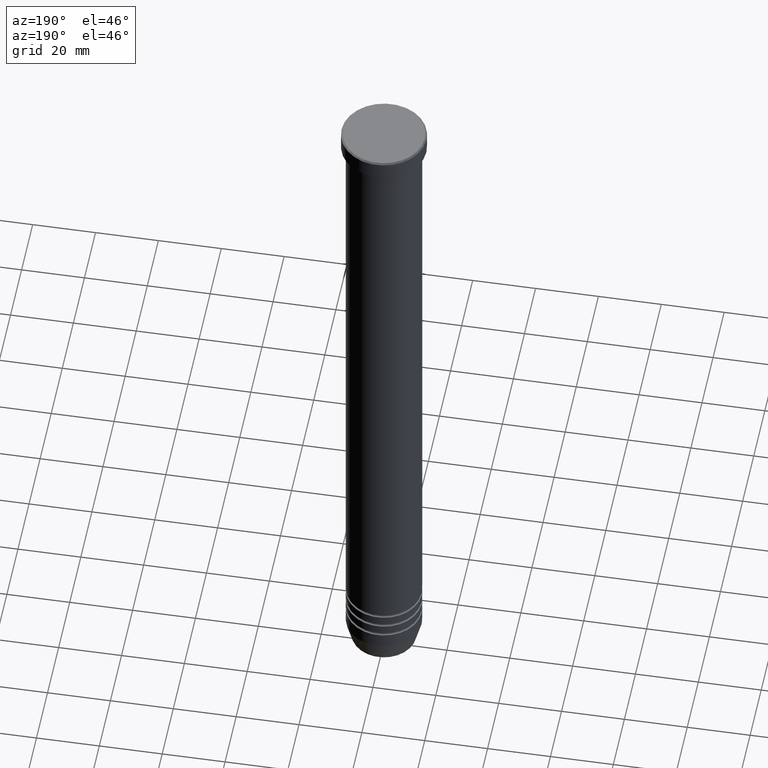
[diagram: clean part render]
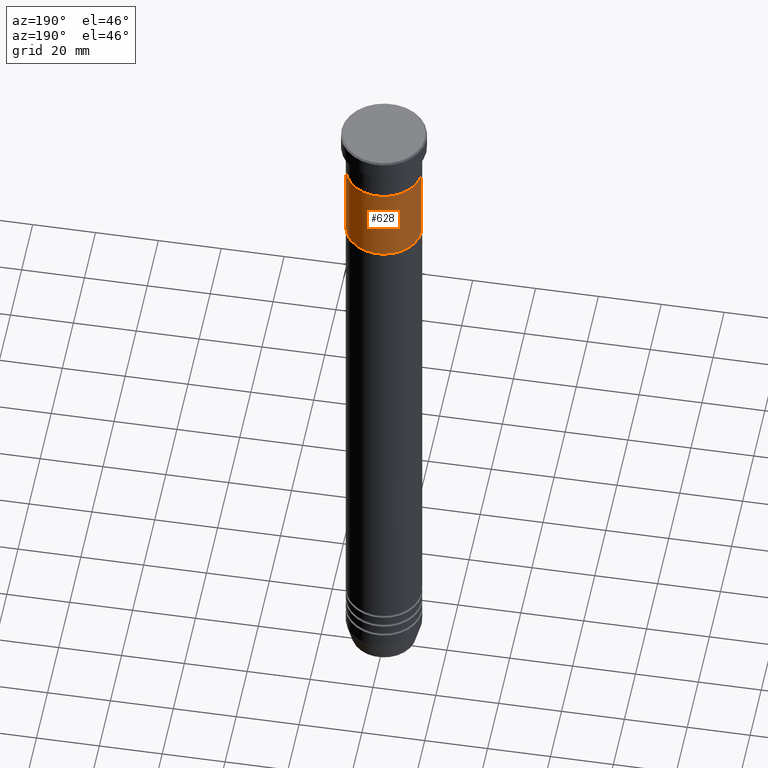
[diagram: same view with one face highlighted and labeled with its STEP entity id]
A machine part, auxiliary view. The second image highlights one B-rep face of the part: STEP entity #628.
In plain terms, the highlighted cylindrical surface (partial cylindrical patch) has radius 12 mm, axis along (-0, -0, 1).
Its self-contained STEP definition (entity closure, byte-faithful):
#89 = DIRECTION ( 'NONE',  ( 1.000000000000000000, 0.000000000000000000, 0.000000000000000000 ) ) ;
#97 = CARTESIAN_POINT ( 'NONE',  ( -12.00000000000000178, 1.469576158976823947E-15, -41.99999999999999289 ) ) ;
#159 = EDGE_LOOP ( 'NONE', ( #440, #682, #693, #966 ) ) ;
#187 = CARTESIAN_POINT ( 'NONE',  ( -12.00000000000000178, 1.469576158976823947E-15, -16.00000000000000000 ) ) ;
#195 = DIRECTION ( 'NONE',  ( 0.000000000000000000, 0.000000000000000000, -1.000000000000000000 ) ) ;
#202 = AXIS2_PLACEMENT_3D ( 'NONE', #873, #817, #830 ) ;
#305 = EDGE_CURVE ( 'NONE', #806, #414, #539, .T. ) ;
#307 = VECTOR ( 'NONE', #457, 1000.000000000000000 ) ;
#378 = EDGE_CURVE ( 'NONE', #1132, #964, #704, .T. ) ;
#414 = VERTEX_POINT ( 'NONE', #187 ) ;
#440 = ORIENTED_EDGE ( 'NONE', *, *, #932, .F. ) ;
#457 = DIRECTION ( 'NONE',  ( -0.000000000000000000, -0.000000000000000000, 1.000000000000000000 ) ) ;
#474 = CARTESIAN_POINT ( 'NONE',  ( -12.00000000000000178, 1.469576158976823947E-15, -41.99999999999999289 ) ) ;
#499 = FACE_OUTER_BOUND ( 'NONE', #159, .T. ) ;
#507 = DIRECTION ( 'NONE',  ( -0.000000000000000000, -0.000000000000000000, 1.000000000000000000 ) ) ;
#539 = LINE ( 'NONE', #97, #987 ) ;
#552 = AXIS2_PLACEMENT_3D ( 'NONE', #878, #507, #89 ) ;
#628 = ADVANCED_FACE ( 'NONE', ( #499 ), #970, .T. ) ;
#639 = DIRECTION ( 'NONE',  ( -1.000000000000000000, 0.000000000000000000, 0.000000000000000000 ) ) ;
#662 = CARTESIAN_POINT ( 'NONE',  ( 12.00000000000000178, 0.000000000000000000, -41.99999999999999289 ) ) ;
#682 = ORIENTED_EDGE ( 'NONE', *, *, #305, .T. ) ;
#693 = ORIENTED_EDGE ( 'NONE', *, *, #720, .T. ) ;
#699 = CIRCLE ( 'NONE', #202, 12.00000000000000178 ) ;
#702 = DIRECTION ( 'NONE',  ( -0.000000000000000000, -0.000000000000000000, 1.000000000000000000 ) ) ;
#704 = LINE ( 'NONE', #939, #307 ) ;
#716 = CARTESIAN_POINT ( 'NONE',  ( 0.000000000000000000, 0.000000000000000000, -16.00000000000000000 ) ) ;
#720 = EDGE_CURVE ( 'NONE', #414, #964, #907, .T. ) ;
#806 = VERTEX_POINT ( 'NONE', #474 ) ;
#817 = DIRECTION ( 'NONE',  ( 0.000000000000000000, 0.000000000000000000, -1.000000000000000000 ) ) ;
#823 = AXIS2_PLACEMENT_3D ( 'NONE', #716, #195, #639 ) ;
#830 = DIRECTION ( 'NONE',  ( -1.000000000000000000, 0.000000000000000000, 0.000000000000000000 ) ) ;
#873 = CARTESIAN_POINT ( 'NONE',  ( 0.000000000000000000, 0.000000000000000000, -41.99999999999999289 ) ) ;
#878 = CARTESIAN_POINT ( 'NONE',  ( 0.000000000000000000, 0.000000000000000000, -41.99999999999999289 ) ) ;
#907 = CIRCLE ( 'NONE', #823, 12.00000000000000178 ) ;
#932 = EDGE_CURVE ( 'NONE', #806, #1132, #699, .T. ) ;
#939 = CARTESIAN_POINT ( 'NONE',  ( 12.00000000000000178, 0.000000000000000000, -41.99999999999999289 ) ) ;
#964 = VERTEX_POINT ( 'NONE', #1059 ) ;
#966 = ORIENTED_EDGE ( 'NONE', *, *, #378, .F. ) ;
#970 = CYLINDRICAL_SURFACE ( 'NONE', #552, 12.00000000000000178 ) ;
#987 = VECTOR ( 'NONE', #702, 1000.000000000000000 ) ;
#1059 = CARTESIAN_POINT ( 'NONE',  ( 12.00000000000000178, 0.000000000000000000, -16.00000000000000000 ) ) ;
#1132 = VERTEX_POINT ( 'NONE', #662 ) ;